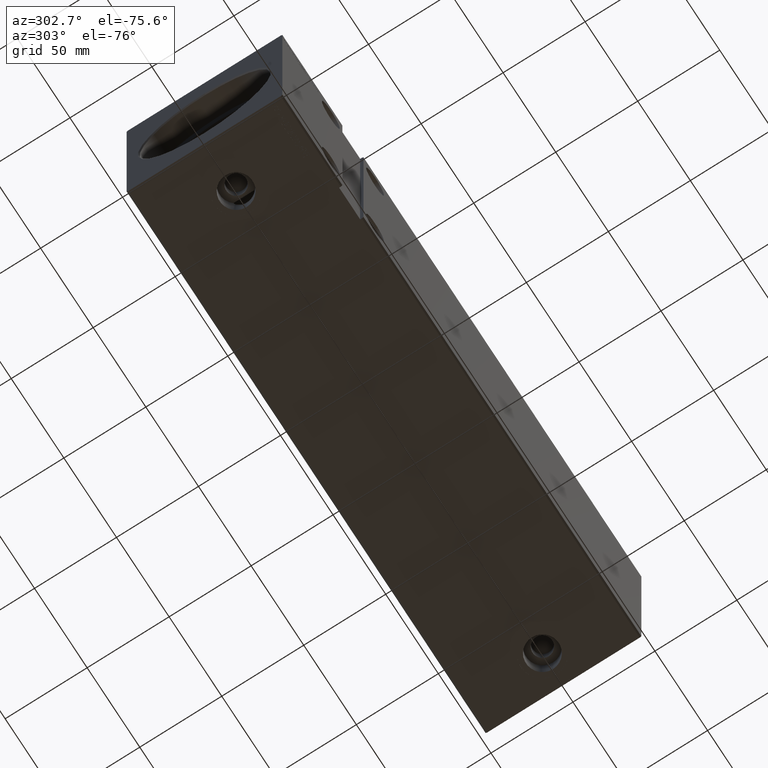
[diagram: clean part render]
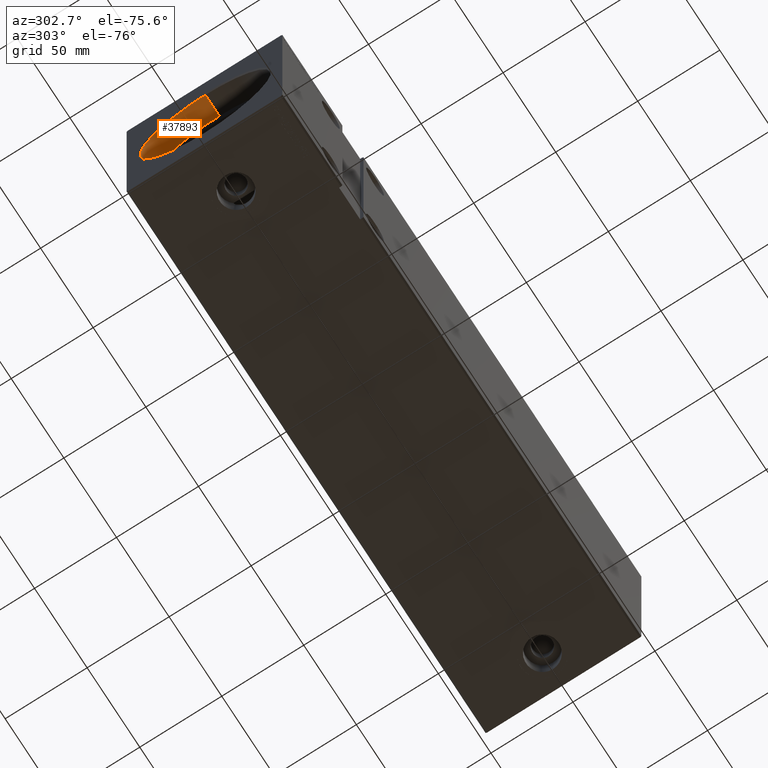
[diagram: same view with one face highlighted and labeled with its STEP entity id]
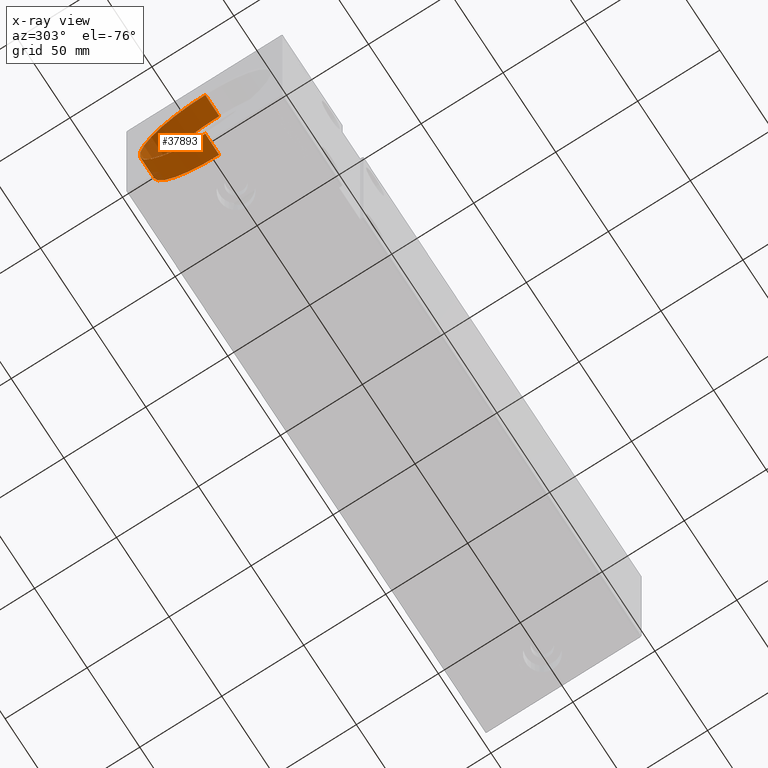
[diagram: x-ray of the same camera — body ghosted, the highlighted face saturated]
A machine part, auxiliary view. The second image highlights one B-rep face of the part: STEP entity #37893.
The next image is the same camera in x-ray: the body ghosted, the highlighted face saturated — about 2% of this face is hidden behind the body in this view.
In plain terms, the highlighted cylindrical surface (partial cylindrical patch) has radius 40 mm, axis along (-1, -0, -0).
Its self-contained STEP definition (entity closure, byte-faithful):
#1897 = CARTESIAN_POINT ( 'NONE',  ( 14.00000000000000000, 0.000000000000000000, 40.00000000000000000 ) ) ;
#2015 = DIRECTION ( 'NONE',  ( -1.000000000000000000, 0.000000000000000000, 0.000000000000000000 ) ) ;
#3308 = CARTESIAN_POINT ( 'NONE',  ( 14.00000000000000000, 4.898587196589413026E-15, -40.00000000000000000 ) ) ;
#3861 = CARTESIAN_POINT ( 'NONE',  ( 14.00000000000000000, 0.000000000000000000, 0.000000000000000000 ) ) ;
#4007 = ORIENTED_EDGE ( 'NONE', *, *, #9156, .T. ) ;
#4064 = DIRECTION ( 'NONE',  ( 0.000000000000000000, 0.000000000000000000, 1.000000000000000000 ) ) ;
#7781 = CARTESIAN_POINT ( 'NONE',  ( 0.6999999999999297895, 0.000000000000000000, 40.00000000000000000 ) ) ;
#8773 = CARTESIAN_POINT ( 'NONE',  ( 14.00000000000000000, 0.000000000000000000, 40.00000000000000000 ) ) ;
#9156 = EDGE_CURVE ( 'NONE', #10336, #19671, #41471, .T. ) ;
#10336 = VERTEX_POINT ( 'NONE', #7781 ) ;
#11049 = DIRECTION ( 'NONE',  ( -1.000000000000000000, 0.000000000000000000, 0.000000000000000000 ) ) ;
#12522 = ORIENTED_EDGE ( 'NONE', *, *, #13770, .T. ) ;
#12974 = ORIENTED_EDGE ( 'NONE', *, *, #42096, .F. ) ;
#13692 = VECTOR ( 'NONE', #40702, 1000.000000000000000 ) ;
#13770 = EDGE_CURVE ( 'NONE', #24879, #10336, #15386, .T. ) ;
#14450 = DIRECTION ( 'NONE',  ( 0.000000000000000000, 0.000000000000000000, -1.000000000000000000 ) ) ;
#15386 = LINE ( 'NONE', #8773, #13692 ) ;
#16313 = DIRECTION ( 'NONE',  ( -1.000000000000000000, -0.000000000000000000, -0.000000000000000000 ) ) ;
#16860 = DIRECTION ( 'NONE',  ( -1.000000000000000000, -0.000000000000000000, -0.000000000000000000 ) ) ;
#16974 = EDGE_CURVE ( 'NONE', #23459, #19671, #32481, .T. ) ;
#17708 = CARTESIAN_POINT ( 'NONE',  ( 14.00000000000000000, 4.898587196589413026E-15, -40.00000000000000000 ) ) ;
#19182 = VECTOR ( 'NONE', #16313, 1000.000000000000000 ) ;
#19671 = VERTEX_POINT ( 'NONE', #32934 ) ;
#23459 = VERTEX_POINT ( 'NONE', #17708 ) ;
#24879 = VERTEX_POINT ( 'NONE', #1897 ) ;
#28555 = AXIS2_PLACEMENT_3D ( 'NONE', #40187, #11049, #14450 ) ;
#32481 = LINE ( 'NONE', #3308, #19182 ) ;
#32934 = CARTESIAN_POINT ( 'NONE',  ( 0.6999999999999297895, 4.898587196589413026E-15, -40.00000000000000000 ) ) ;
#34246 = AXIS2_PLACEMENT_3D ( 'NONE', #37997, #2015, #40990 ) ;
#37893 = ADVANCED_FACE ( 'NONE', ( #39415 ), #38995, .F. ) ;
#37997 = CARTESIAN_POINT ( 'NONE',  ( 14.00000000000000000, 0.000000000000000000, 0.000000000000000000 ) ) ;
#38076 = ORIENTED_EDGE ( 'NONE', *, *, #16974, .F. ) ;
#38738 = EDGE_LOOP ( 'NONE', ( #38076, #12974, #12522, #4007 ) ) ;
#38995 = CYLINDRICAL_SURFACE ( 'NONE', #40281, 40.00000000000000000 ) ;
#39047 = CIRCLE ( 'NONE', #34246, 40.00000000000000000 ) ;
#39415 = FACE_OUTER_BOUND ( 'NONE', #38738, .T. ) ;
#40187 = CARTESIAN_POINT ( 'NONE',  ( 0.6999999999999297895, 0.000000000000000000, 0.000000000000000000 ) ) ;
#40281 = AXIS2_PLACEMENT_3D ( 'NONE', #3861, #16860, #4064 ) ;
#40702 = DIRECTION ( 'NONE',  ( -1.000000000000000000, -0.000000000000000000, -0.000000000000000000 ) ) ;
#40990 = DIRECTION ( 'NONE',  ( 0.000000000000000000, 0.000000000000000000, 1.000000000000000000 ) ) ;
#41471 = CIRCLE ( 'NONE', #28555, 40.00000000000000000 ) ;
#42096 = EDGE_CURVE ( 'NONE', #24879, #23459, #39047, .T. ) ;